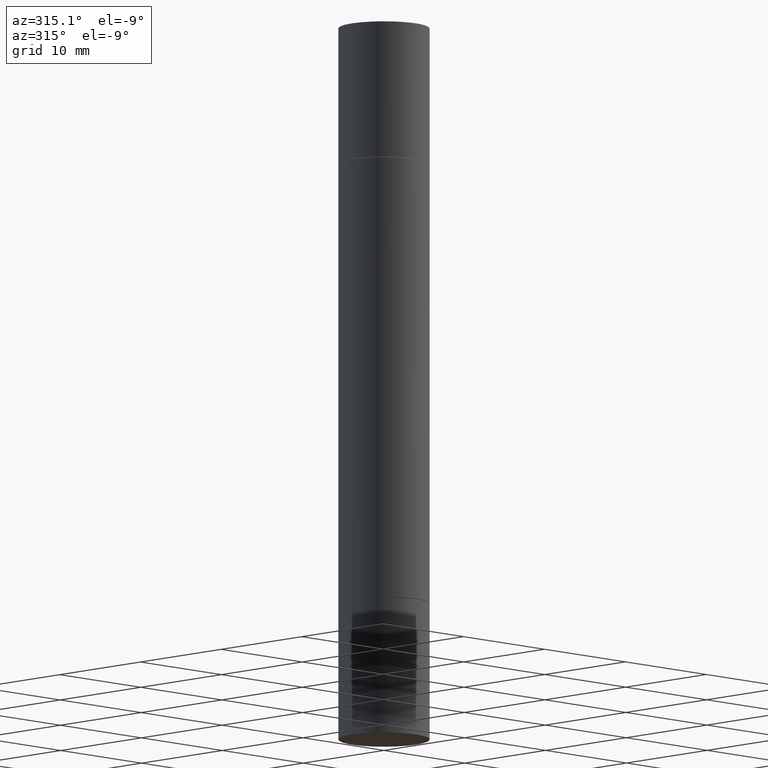
[diagram: clean part render]
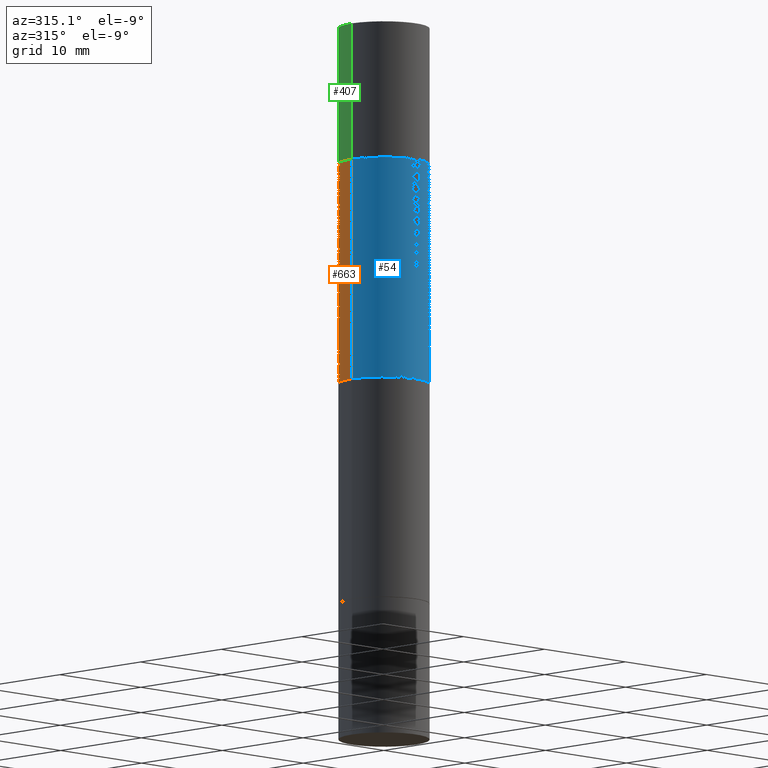
[diagram: same view with three faces highlighted in distinct colors, each labeled with its STEP entity id]
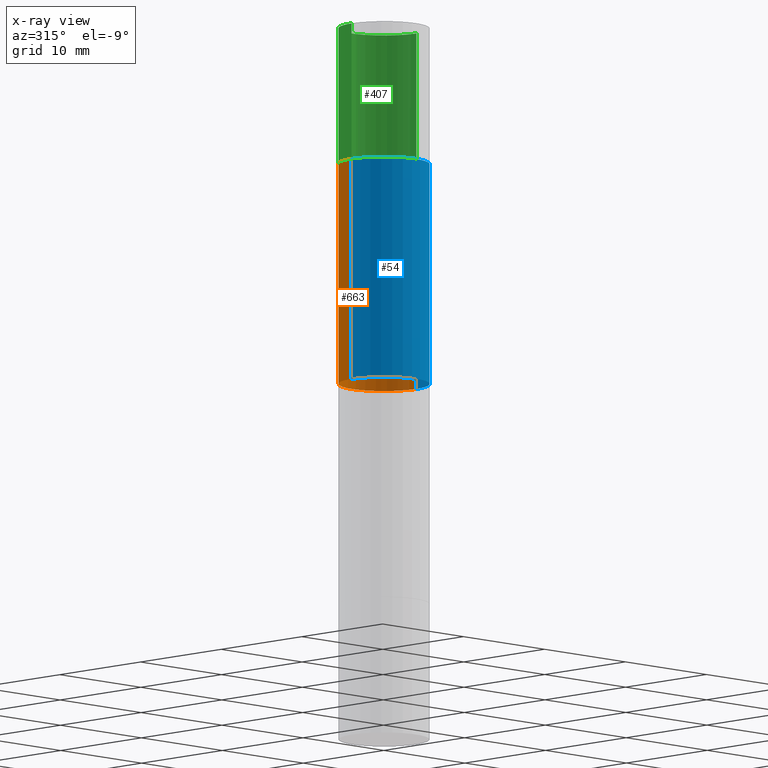
[diagram: x-ray of the same camera — body ghosted, the three highlighted faces saturated]
A machine part, auxiliary view with three faces highlighted in distinct colors.
The next image is the same camera in x-ray (body ghosted, the three faces saturated) — at least one of them is partly hidden behind the body in this view.
Their STEP definitions:

[orange] entity #663 — the highlighted cylindrical surface (partial cylindrical patch) has radius 4.0005 mm, axis along (-0, -0, -1).
#11 = EDGE_CURVE ( 'NONE', #631, #280, #253, .T. ) ;
#14 = DIRECTION ( 'NONE',  ( -2.445468806185136597E-29, -3.492890411551752677E-15, -1.000000000000000000 ) ) ;
#18 = CARTESIAN_POINT ( 'NONE',  ( 0.000000000000000000, -8.661668626252231138E-15, -2.480299999999999727 ) ) ;
#43 = AXIS2_PLACEMENT_3D ( 'NONE', #76, #87, #603 ) ;
#50 = EDGE_CURVE ( 'NONE', #631, #493, #653, .T. ) ;
#76 = CARTESIAN_POINT ( 'NONE',  ( 4.907811347132950827E-29, -1.651786859309018332E-15, -0.4733999999999996544 ) ) ;
#87 = DIRECTION ( 'NONE',  ( 2.445468806185136597E-29, 3.492890411551752677E-15, 1.000000000000000000 ) ) ;
#128 = CIRCLE ( 'NONE', #465, 0.1574999999999998901 ) ;
#205 = VECTOR ( 'NONE', #248, 39.37007874015748143 ) ;
#228 = CARTESIAN_POINT ( 'NONE',  ( 3.032748139990496817E-29, -4.329960582366326879E-15, -1.240149999999999864 ) ) ;
#233 = DIRECTION ( 'NONE',  ( -2.445468806185136877E-29, -3.492890411551753071E-15, -1.000000000000000000 ) ) ;
#244 = CARTESIAN_POINT ( 'NONE',  ( -0.1574999999999998901, -7.581140191603216936E-15, -2.480299999999999727 ) ) ;
#248 = DIRECTION ( 'NONE',  ( -2.445468806185136877E-29, -3.492890411551753071E-15, -1.000000000000000000 ) ) ;
#253 = CIRCLE ( 'NONE', #43, 0.1575000000000000011 ) ;
#257 = EDGE_CURVE ( 'NONE', #444, #493, #128, .T. ) ;
#273 = CARTESIAN_POINT ( 'NONE',  ( 0.1574999999999998901, -9.761485247987817829E-15, -2.480299999999999727 ) ) ;
#280 = VERTEX_POINT ( 'NONE', #418 ) ;
#300 = ORIENTED_EDGE ( 'NONE', *, *, #50, .T. ) ;
#309 = CYLINDRICAL_SURFACE ( 'NONE', #391, 0.1574999999999998901 ) ;
#310 = DIRECTION ( 'NONE',  ( 1.000000000000000000, -6.982962677686261189E-15, 0.000000000000000000 ) ) ;
#333 = ORIENTED_EDGE ( 'NONE', *, *, #11, .F. ) ;
#343 = LINE ( 'NONE', #244, #205 ) ;
#377 = DIRECTION ( 'NONE',  ( -0.000000000000000000, -3.492185875197449130E-15, -1.000000000000000000 ) ) ;
#380 = ORIENTED_EDGE ( 'NONE', *, *, #257, .F. ) ;
#382 = DIRECTION ( 'NONE',  ( 0.000000000000000000, 1.000000000000000000, -3.469013325287955660E-15 ) ) ;
#391 = AXIS2_PLACEMENT_3D ( 'NONE', #18, #14, #310 ) ;
#418 = CARTESIAN_POINT ( 'NONE',  ( -0.1575000000000000011, -5.712584246600035385E-16, -0.4733999999999996544 ) ) ;
#420 = CARTESIAN_POINT ( 'NONE',  ( 0.1575000000000000011, -2.751603481044606995E-15, -0.4733999999999996544 ) ) ;
#444 = VERTEX_POINT ( 'NONE', #665 ) ;
#465 = AXIS2_PLACEMENT_3D ( 'NONE', #228, #377, #382 ) ;
#490 = VECTOR ( 'NONE', #233, 39.37007874015748143 ) ;
#493 = VERTEX_POINT ( 'NONE', #545 ) ;
#513 = ORIENTED_EDGE ( 'NONE', *, *, #528, .F. ) ;
#528 = EDGE_CURVE ( 'NONE', #280, #444, #343, .T. ) ;
#545 = CARTESIAN_POINT ( 'NONE',  ( 0.1574999999999998901, -4.090690342573258113E-15, -1.240149999999999864 ) ) ;
#589 = FACE_OUTER_BOUND ( 'NONE', #619, .T. ) ;
#603 = DIRECTION ( 'NONE',  ( 1.000000000000000000, -6.982962677686268288E-15, 0.000000000000000000 ) ) ;
#619 = EDGE_LOOP ( 'NONE', ( #513, #333, #300, #380 ) ) ;
#631 = VERTEX_POINT ( 'NONE', #420 ) ;
#653 = LINE ( 'NONE', #273, #490 ) ;
#663 = ADVANCED_FACE ( 'NONE', ( #589 ), #309, .T. ) ;
#665 = CARTESIAN_POINT ( 'NONE',  ( -0.1574999999999998901, -1.910345286188656432E-15, -1.240149999999999864 ) ) ;

[blue] entity #54 — the highlighted cylindrical surface (partial cylindrical patch) has radius 4.0005 mm, axis along (-0, -0, -1).
#50 = EDGE_CURVE ( 'NONE', #631, #493, #653, .T. ) ;
#54 = ADVANCED_FACE ( 'NONE', ( #606 ), #327, .T. ) ;
#55 = AXIS2_PLACEMENT_3D ( 'NONE', #306, #351, #58 ) ;
#58 = DIRECTION ( 'NONE',  ( 0.000000000000000000, 1.000000000000000000, -3.469013325287955660E-15 ) ) ;
#60 = ORIENTED_EDGE ( 'NONE', *, *, #528, .T. ) ;
#136 = EDGE_CURVE ( 'NONE', #280, #631, #403, .T. ) ;
#148 = DIRECTION ( 'NONE',  ( 2.445468806185136597E-29, 3.492890411551752677E-15, 1.000000000000000000 ) ) ;
#149 = AXIS2_PLACEMENT_3D ( 'NONE', #175, #436, #664 ) ;
#158 = EDGE_CURVE ( 'NONE', #493, #444, #283, .T. ) ;
#175 = CARTESIAN_POINT ( 'NONE',  ( 0.000000000000000000, -8.661668626252231138E-15, -2.480299999999999727 ) ) ;
#205 = VECTOR ( 'NONE', #248, 39.37007874015748143 ) ;
#233 = DIRECTION ( 'NONE',  ( -2.445468806185136877E-29, -3.492890411551753071E-15, -1.000000000000000000 ) ) ;
#244 = CARTESIAN_POINT ( 'NONE',  ( -0.1574999999999998901, -7.581140191603216936E-15, -2.480299999999999727 ) ) ;
#248 = DIRECTION ( 'NONE',  ( -2.445468806185136877E-29, -3.492890411551753071E-15, -1.000000000000000000 ) ) ;
#273 = CARTESIAN_POINT ( 'NONE',  ( 0.1574999999999998901, -9.761485247987817829E-15, -2.480299999999999727 ) ) ;
#280 = VERTEX_POINT ( 'NONE', #418 ) ;
#283 = CIRCLE ( 'NONE', #55, 0.1574999999999998901 ) ;
#286 = ORIENTED_EDGE ( 'NONE', *, *, #158, .F. ) ;
#306 = CARTESIAN_POINT ( 'NONE',  ( 3.032748139990496817E-29, -4.329960582366326879E-15, -1.240149999999999864 ) ) ;
#315 = EDGE_LOOP ( 'NONE', ( #359, #60, #286, #408 ) ) ;
#327 = CYLINDRICAL_SURFACE ( 'NONE', #149, 0.1574999999999998901 ) ;
#343 = LINE ( 'NONE', #244, #205 ) ;
#351 = DIRECTION ( 'NONE',  ( -0.000000000000000000, -3.492185875197449130E-15, -1.000000000000000000 ) ) ;
#359 = ORIENTED_EDGE ( 'NONE', *, *, #136, .F. ) ;
#403 = CIRCLE ( 'NONE', #447, 0.1575000000000000011 ) ;
#408 = ORIENTED_EDGE ( 'NONE', *, *, #50, .F. ) ;
#418 = CARTESIAN_POINT ( 'NONE',  ( -0.1575000000000000011, -5.712584246600035385E-16, -0.4733999999999996544 ) ) ;
#420 = CARTESIAN_POINT ( 'NONE',  ( 0.1575000000000000011, -2.751603481044606995E-15, -0.4733999999999996544 ) ) ;
#436 = DIRECTION ( 'NONE',  ( -2.445468806185136597E-29, -3.492890411551752677E-15, -1.000000000000000000 ) ) ;
#444 = VERTEX_POINT ( 'NONE', #665 ) ;
#447 = AXIS2_PLACEMENT_3D ( 'NONE', #516, #148, #618 ) ;
#490 = VECTOR ( 'NONE', #233, 39.37007874015748143 ) ;
#493 = VERTEX_POINT ( 'NONE', #545 ) ;
#516 = CARTESIAN_POINT ( 'NONE',  ( 4.907811347132950827E-29, -1.651786859309018332E-15, -0.4733999999999996544 ) ) ;
#528 = EDGE_CURVE ( 'NONE', #280, #444, #343, .T. ) ;
#545 = CARTESIAN_POINT ( 'NONE',  ( 0.1574999999999998901, -4.090690342573258113E-15, -1.240149999999999864 ) ) ;
#606 = FACE_OUTER_BOUND ( 'NONE', #315, .T. ) ;
#618 = DIRECTION ( 'NONE',  ( 1.000000000000000000, -6.982962677686268288E-15, 0.000000000000000000 ) ) ;
#631 = VERTEX_POINT ( 'NONE', #420 ) ;
#653 = LINE ( 'NONE', #273, #490 ) ;
#664 = DIRECTION ( 'NONE',  ( 1.000000000000000000, -6.982962677686261189E-15, 0.000000000000000000 ) ) ;
#665 = CARTESIAN_POINT ( 'NONE',  ( -0.1574999999999998901, -1.910345286188656432E-15, -1.240149999999999864 ) ) ;

[green] entity #407 — the highlighted cylindrical surface (partial cylindrical patch) has radius 4.0005 mm, axis along (-0, -0, -1).
#7 = DIRECTION ( 'NONE',  ( -2.445468806185136877E-29, -3.492890411551753071E-15, -1.000000000000000000 ) ) ;
#23 = VERTEX_POINT ( 'NONE', #430 ) ;
#77 = FACE_OUTER_BOUND ( 'NONE', #174, .T. ) ;
#80 = ORIENTED_EDGE ( 'NONE', *, *, #160, .F. ) ;
#83 = CIRCLE ( 'NONE', #358, 0.1575000000000000011 ) ;
#98 = CARTESIAN_POINT ( 'NONE',  ( 0.1575000000000000011, -1.098069160216006353E-15, 5.463695987328526437E-16 ) ) ;
#109 = LINE ( 'NONE', #412, #588 ) ;
#152 = VERTEX_POINT ( 'NONE', #98 ) ;
#160 = EDGE_CURVE ( 'NONE', #573, #23, #256, .T. ) ;
#169 = DIRECTION ( 'NONE',  ( 2.445468806185136597E-29, 3.492890411551752677E-15, 1.000000000000000000 ) ) ;
#174 = EDGE_LOOP ( 'NONE', ( #80, #642, #216, #471 ) ) ;
#177 = CYLINDRICAL_SURFACE ( 'NONE', #367, 0.1575000000000000011 ) ;
#178 = CARTESIAN_POINT ( 'NONE',  ( 4.910256815939136430E-29, -1.648293968897467768E-15, -0.4723999999999995980 ) ) ;
#180 = DIRECTION ( 'NONE',  ( 1.000000000000000000, -6.982962677686268288E-15, 0.000000000000000000 ) ) ;
#216 = ORIENTED_EDGE ( 'NONE', *, *, #677, .T. ) ;
#220 = DIRECTION ( 'NONE',  ( 1.000000000000000000, -6.982962677686268288E-15, 0.000000000000000000 ) ) ;
#249 = EDGE_CURVE ( 'NONE', #434, #23, #534, .T. ) ;
#256 = LINE ( 'NONE', #462, #595 ) ;
#277 = DIRECTION ( 'NONE',  ( -2.445468806185136597E-29, -3.492890411551752677E-15, -1.000000000000000000 ) ) ;
#358 = AXIS2_PLACEMENT_3D ( 'NONE', #564, #427, #612 ) ;
#363 = DIRECTION ( 'NONE',  ( -2.445468806185136877E-29, -3.492890411551753071E-15, -1.000000000000000000 ) ) ;
#367 = AXIS2_PLACEMENT_3D ( 'NONE', #432, #277, #180 ) ;
#390 = CARTESIAN_POINT ( 'NONE',  ( -0.1575000000000000011, 2.572551809600735932E-16, 5.463695987328556019E-16 ) ) ;
#407 = ADVANCED_FACE ( 'NONE', ( #77 ), #177, .T. ) ;
#412 = CARTESIAN_POINT ( 'NONE',  ( 0.1575000000000000011, -9.761485247987819407E-15, -2.480299999999999727 ) ) ;
#415 = AXIS2_PLACEMENT_3D ( 'NONE', #178, #169, #220 ) ;
#427 = DIRECTION ( 'NONE',  ( 2.445468806185136597E-29, 3.492890411551752677E-15, 1.000000000000000000 ) ) ;
#430 = CARTESIAN_POINT ( 'NONE',  ( -0.1575000000000000011, 2.572551809600735932E-16, -0.4723999999999995980 ) ) ;
#432 = CARTESIAN_POINT ( 'NONE',  ( 0.000000000000000000, -8.661668626252231138E-15, -2.480299999999999727 ) ) ;
#434 = VERTEX_POINT ( 'NONE', #559 ) ;
#445 = EDGE_CURVE ( 'NONE', #152, #573, #83, .T. ) ;
#462 = CARTESIAN_POINT ( 'NONE',  ( -0.1575000000000000011, -7.581140191603215359E-15, -2.480299999999999727 ) ) ;
#471 = ORIENTED_EDGE ( 'NONE', *, *, #249, .T. ) ;
#534 = CIRCLE ( 'NONE', #415, 0.1575000000000000011 ) ;
#559 = CARTESIAN_POINT ( 'NONE',  ( 0.1575000000000000011, -2.748110590633054853E-15, -0.4723999999999995980 ) ) ;
#564 = CARTESIAN_POINT ( 'NONE',  ( 6.065496279980994755E-29, 1.747461519580534218E-18, 5.463695987328526437E-16 ) ) ;
#573 = VERTEX_POINT ( 'NONE', #390 ) ;
#588 = VECTOR ( 'NONE', #363, 39.37007874015748143 ) ;
#595 = VECTOR ( 'NONE', #7, 39.37007874015748143 ) ;
#612 = DIRECTION ( 'NONE',  ( 1.000000000000000000, -6.982962677686265922E-15, 0.000000000000000000 ) ) ;
#642 = ORIENTED_EDGE ( 'NONE', *, *, #445, .F. ) ;
#677 = EDGE_CURVE ( 'NONE', #152, #434, #109, .T. ) ;